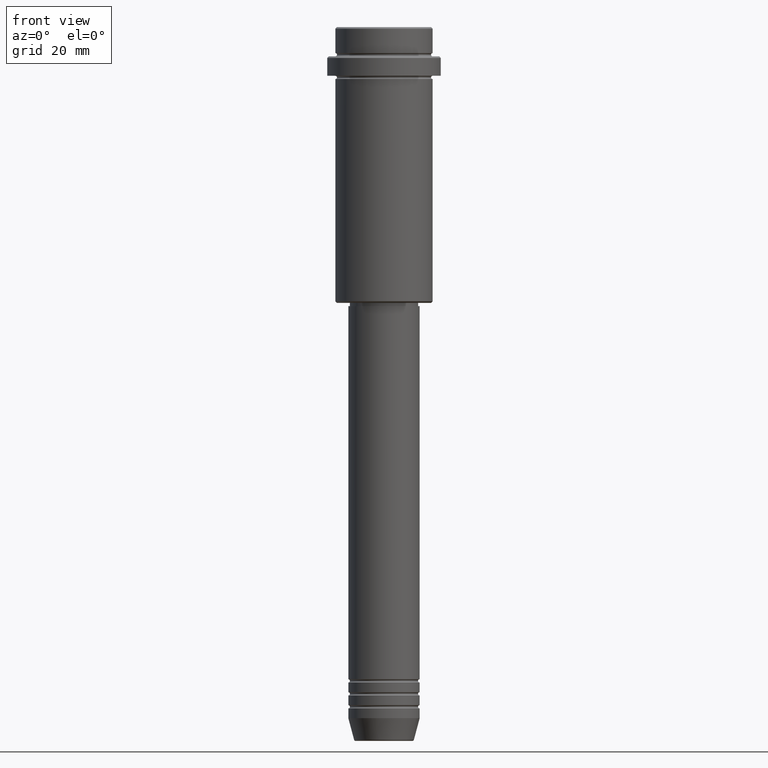
[diagram: clean part render]
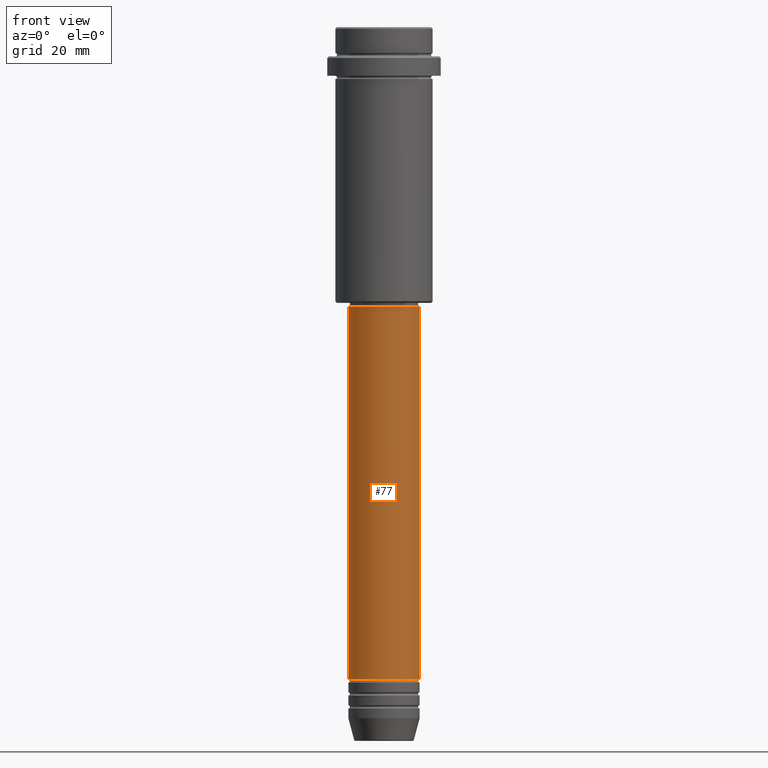
[diagram: same view with one face highlighted and labeled with its STEP entity id]
A machine part, front view. The second image highlights one B-rep face of the part: STEP entity #77.
In plain terms, the highlighted cylindrical surface (edge-blend (fillet) strip) has radius 11 mm, axis along (-0, -0, 1).
Its self-contained STEP definition (entity closure, byte-faithful):
#40 = DIRECTION ( 'NONE',  ( -0.000000000000000000, -0.000000000000000000, 1.000000000000000000 ) ) ;
#77 = ADVANCED_FACE ( 'NONE', ( #717 ), #1237, .T. ) ;
#152 = CARTESIAN_POINT ( 'NONE',  ( 0.000000000000000000, 0.000000000000000000, 0.000000000000000000 ) ) ;
#254 = VECTOR ( 'NONE', #40, 1000.000000000000000 ) ;
#264 = CARTESIAN_POINT ( 'NONE',  ( 0.000000000000000000, 0.000000000000000000, -86.00000000000001421 ) ) ;
#274 = DIRECTION ( 'NONE',  ( -0.000000000000000000, -0.000000000000000000, 1.000000000000000000 ) ) ;
#340 = AXIS2_PLACEMENT_3D ( 'NONE', #494, #807, #384 ) ;
#384 = DIRECTION ( 'NONE',  ( 1.000000000000000000, 0.000000000000000000, 0.000000000000000000 ) ) ;
#385 = DIRECTION ( 'NONE',  ( 1.000000000000000000, 0.000000000000000000, 0.000000000000000000 ) ) ;
#387 = EDGE_LOOP ( 'NONE', ( #455, #813, #886, #1361 ) ) ;
#402 = EDGE_CURVE ( 'NONE', #820, #1098, #642, .T. ) ;
#438 = EDGE_CURVE ( 'NONE', #586, #820, #1015, .T. ) ;
#455 = ORIENTED_EDGE ( 'NONE', *, *, #438, .F. ) ;
#483 = CARTESIAN_POINT ( 'NONE',  ( 11.00000000000000000, 0.000000000000000000, -200.9999999999999147 ) ) ;
#485 = EDGE_CURVE ( 'NONE', #586, #1231, #530, .T. ) ;
#494 = CARTESIAN_POINT ( 'NONE',  ( 0.000000000000000000, 0.000000000000000000, -200.9999999999999147 ) ) ;
#530 = CIRCLE ( 'NONE', #340, 11.00000000000000000 ) ;
#586 = VERTEX_POINT ( 'NONE', #1315 ) ;
#642 = CIRCLE ( 'NONE', #1246, 10.99999999999999822 ) ;
#717 = FACE_OUTER_BOUND ( 'NONE', #387, .T. ) ;
#807 = DIRECTION ( 'NONE',  ( -0.000000000000000000, -0.000000000000000000, 1.000000000000000000 ) ) ;
#813 = ORIENTED_EDGE ( 'NONE', *, *, #485, .T. ) ;
#820 = VERTEX_POINT ( 'NONE', #863 ) ;
#863 = CARTESIAN_POINT ( 'NONE',  ( -10.99999999999999822, 1.347111479062088207E-15, -86.00000000000001421 ) ) ;
#886 = ORIENTED_EDGE ( 'NONE', *, *, #1233, .T. ) ;
#890 = DIRECTION ( 'NONE',  ( -0.000000000000000000, -0.000000000000000000, 1.000000000000000000 ) ) ;
#917 = LINE ( 'NONE', #1243, #1415 ) ;
#970 = AXIS2_PLACEMENT_3D ( 'NONE', #152, #274, #385 ) ;
#1015 = LINE ( 'NONE', #1211, #254 ) ;
#1098 = VERTEX_POINT ( 'NONE', #1374 ) ;
#1116 = DIRECTION ( 'NONE',  ( 1.000000000000000000, 0.000000000000000000, 0.000000000000000000 ) ) ;
#1178 = DIRECTION ( 'NONE',  ( -0.000000000000000000, -0.000000000000000000, 1.000000000000000000 ) ) ;
#1211 = CARTESIAN_POINT ( 'NONE',  ( -11.00000000000000000, 1.347111479062088405E-15, 0.000000000000000000 ) ) ;
#1231 = VERTEX_POINT ( 'NONE', #483 ) ;
#1233 = EDGE_CURVE ( 'NONE', #1231, #1098, #917, .T. ) ;
#1237 = CYLINDRICAL_SURFACE ( 'NONE', #970, 11.00000000000000000 ) ;
#1243 = CARTESIAN_POINT ( 'NONE',  ( 11.00000000000000000, 0.000000000000000000, 0.000000000000000000 ) ) ;
#1246 = AXIS2_PLACEMENT_3D ( 'NONE', #264, #890, #1116 ) ;
#1315 = CARTESIAN_POINT ( 'NONE',  ( -11.00000000000000000, 1.347111479062088405E-15, -200.9999999999999147 ) ) ;
#1361 = ORIENTED_EDGE ( 'NONE', *, *, #402, .F. ) ;
#1374 = CARTESIAN_POINT ( 'NONE',  ( 10.99999999999999822, 0.000000000000000000, -86.00000000000001421 ) ) ;
#1415 = VECTOR ( 'NONE', #1178, 1000.000000000000000 ) ;